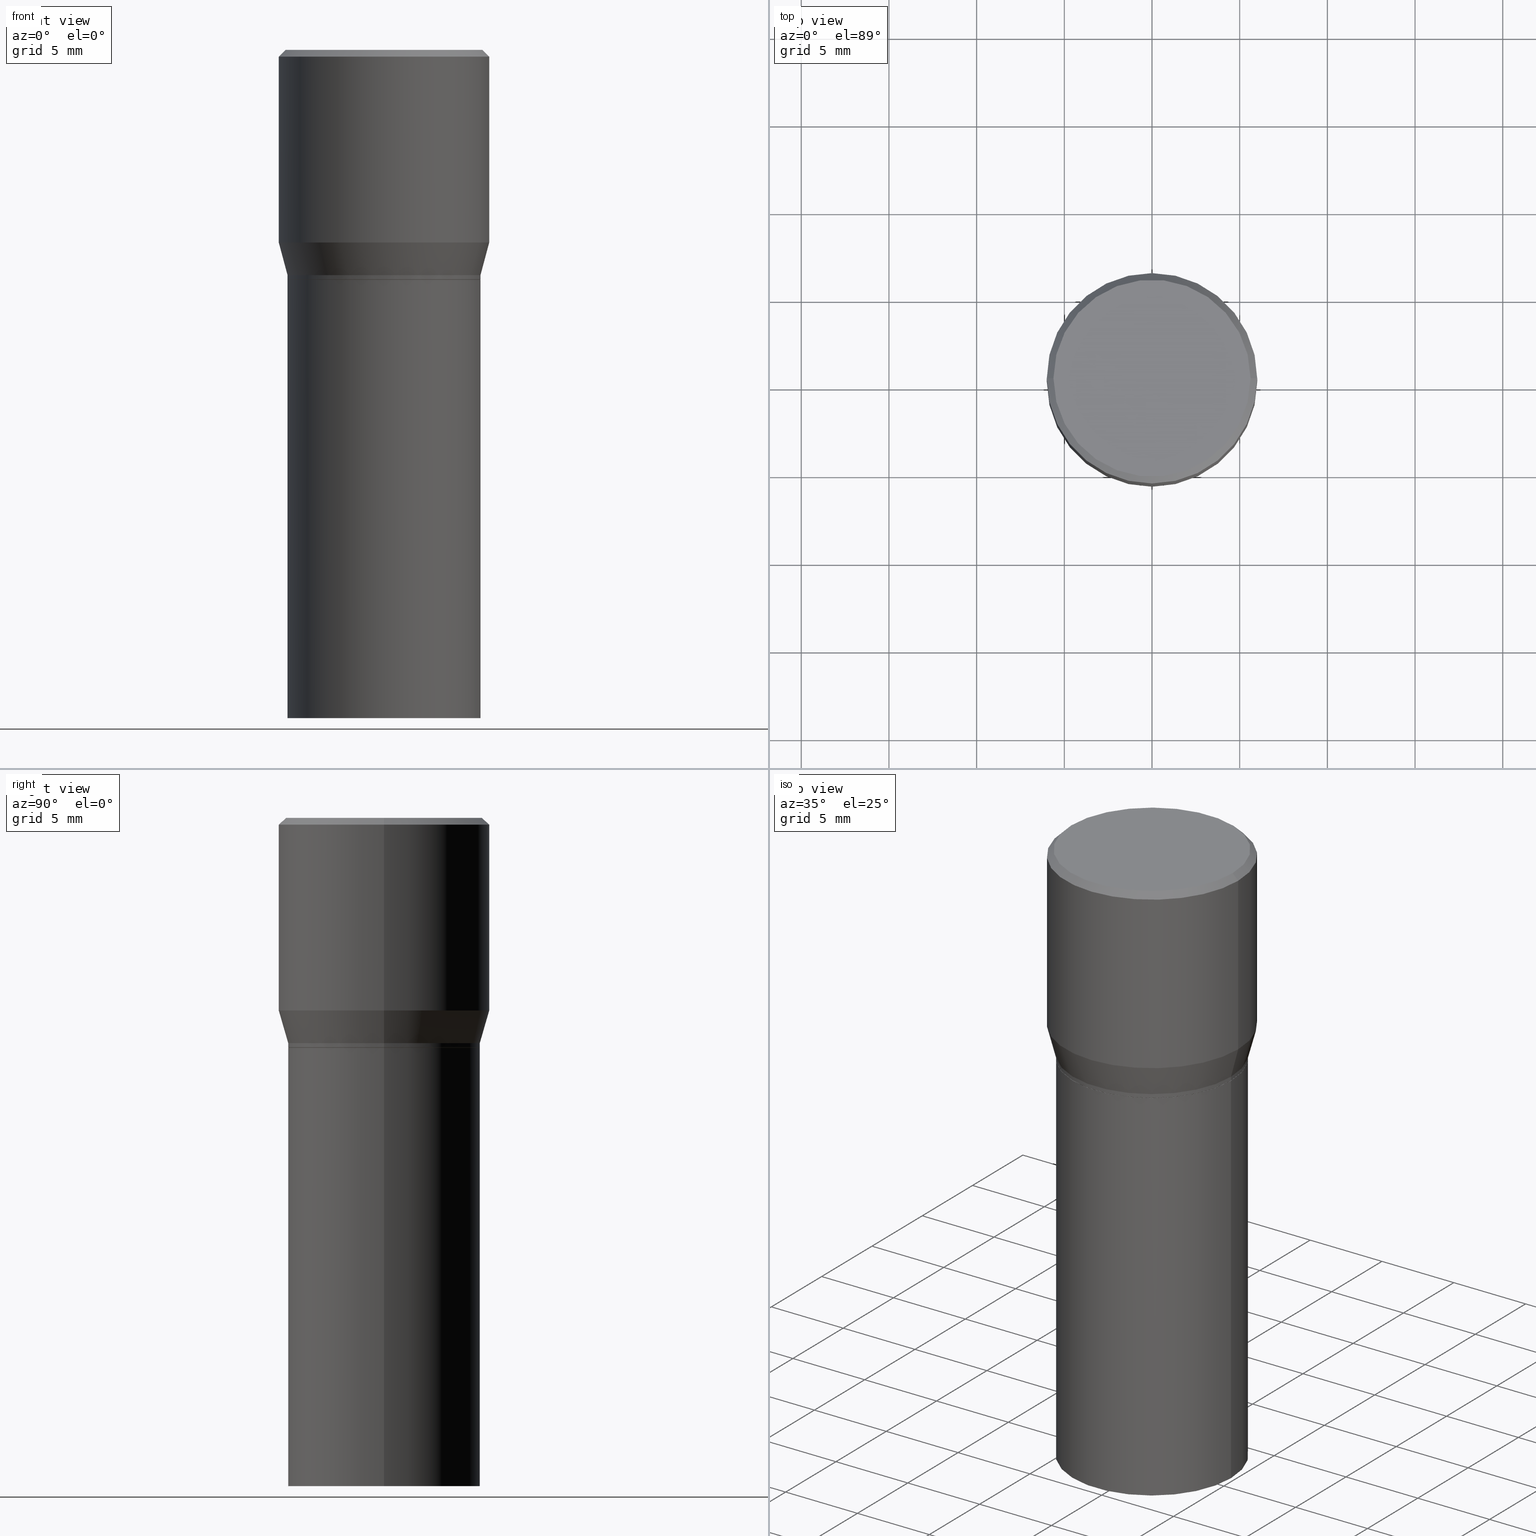
[diagram: canonical four-view strip — front | top / right | iso, engineering-drawing reading convention]
A machine part, canonical four-view strip (front | top / right | iso — engineering-drawing reading convention). The complete STEP part file that produces these views, byte-faithful:
ISO-10303-21;
HEADER;
FILE_DESCRIPTION (( 'STEP AP203' ),
    '1' );
FILE_NAME ('40161.STEP',
    '2024-03-12T19:10:19',
    ( '' ),
    ( '' ),
    'SwSTEP 2.0',
    'SolidWorks 2023',
    '' );
FILE_SCHEMA (( 'CONFIG_CONTROL_DESIGN' ));
ENDSEC;

DATA;
#1 = ORIENTED_EDGE ( 'NONE', *, *, #445, .T. ) ;
#2 = AXIS2_PLACEMENT_3D ( 'NONE', #28, #312, #174 ) ;
#3 = CONICAL_SURFACE ( 'NONE', #356, 0.2361999999999999933, 0.7853981633974459475 ) ;
#4 = CARTESIAN_POINT ( 'NONE',  ( -0.2165500000000000203, -1.980209173064567670E-15, -0.5157000000000001583 ) ) ;
#5 = ORIENTED_EDGE ( 'NONE', *, *, #286, .T. ) ;
#6 = CARTESIAN_POINT ( 'NONE',  ( 0.2165500000000000480, -3.277802680905940530E-15, -0.5057000000000001494 ) ) ;
#7 = VECTOR ( 'NONE', #257, 39.37007874015748143 ) ;
#8 = ORIENTED_EDGE ( 'NONE', *, *, #24, .F. ) ;
#9 = LINE ( 'NONE', #32, #450 ) ;
#10 = CALENDAR_DATE ( 2024, 12, 3 ) ;
#11 = DIRECTION ( 'NONE',  ( 1.000000000000000000, -6.982962677686265133E-15, 0.000000000000000000 ) ) ;
#12 = VERTEX_POINT ( 'NONE', #344 ) ;
#13 = ORIENTED_EDGE ( 'NONE', *, *, #19, .F. ) ;
#14 = DIRECTION ( 'NONE',  ( -2.445468806185136597E-29, 3.491481338843145583E-15, 1.000000000000000000 ) ) ;
#15 = CC_DESIGN_PERSON_AND_ORGANIZATION_ASSIGNMENT ( #215, #152, ( #297 ) ) ;
#16 = ORIENTED_EDGE ( 'NONE', *, *, #118, .T. ) ;
#17 = DIRECTION ( 'NONE',  ( -2.445468806185136597E-29, 3.491481338843145583E-15, 1.000000000000000000 ) ) ;
#18 = VERTEX_POINT ( 'NONE', #164 ) ;
#19 = EDGE_CURVE ( 'NONE', #221, #440, #430, .T. ) ;
#20 = DIRECTION ( 'NONE',  ( -2.445468806185136597E-29, 3.491481338843145583E-15, 1.000000000000000000 ) ) ;
#21 = CIRCLE ( 'NONE', #390, 0.2165500000000000203 ) ;
#22 = CC_DESIGN_APPROVAL ( #433, ( #297 ) ) ;
#23 = CARTESIAN_POINT ( 'NONE',  ( 3.668203209277704895E-29, -5.237222008264718177E-15, -1.500000000000000222 ) ) ;
#24 = EDGE_CURVE ( 'NONE', #188, #408, #410, .T. ) ;
#25 = DIRECTION ( 'NONE',  ( -2.445468806185136597E-29, 3.491481338843145583E-15, 1.000000000000000000 ) ) ;
#26 = EDGE_CURVE ( 'NONE', #142, #440, #242, .T. ) ;
#27 = PRODUCT_DEFINITION_SHAPE ( 'NONE', 'NONE',  #304 ) ;
#28 = CARTESIAN_POINT ( 'NONE',  ( 1.236673575287824021E-29, -1.765642113052979313E-15, -0.5057000000000001494 ) ) ;
#29 = AXIS2_PLACEMENT_3D ( 'NONE', #442, #176, #11 ) ;
#30 = DIRECTION ( 'NONE',  ( 1.000000000000000000, -6.982962677686265922E-15, 4.876176775795935793E-29 ) ) ;
#31 = EDGE_CURVE ( 'NONE', #379, #87, #171, .T. ) ;
#32 = CARTESIAN_POINT ( 'NONE',  ( 0.2160500000000000198, -3.309226012955529172E-15, -0.5157000000000001583 ) ) ;
#33 = CARTESIAN_POINT ( 'NONE',  ( 0.2165500000000000203, -6.749382576117678999E-15, -1.500000000000000222 ) ) ;
#34 = DIRECTION ( 'NONE',  ( -2.445468806185136597E-29, 3.491481338843145583E-15, 1.000000000000000000 ) ) ;
#35 = APPLICATION_PROTOCOL_DEFINITION ( 'international standard', 'config_control_design', 1994, #367 ) ;
#36 = DATE_TIME_ROLE ( 'creation_date' ) ;
#37 = ADVANCED_FACE ( 'NONE', ( #423 ), #108, .T. ) ;
#38 = AXIS2_PLACEMENT_3D ( 'NONE', #382, #14, #194 ) ;
#39 = APPROVAL_PERSON_ORGANIZATION ( #314, #99, #417 ) ;
#40 = CARTESIAN_POINT ( 'NONE',  ( 3.668203209277705088E-31, -5.237222008264718399E-17, -0.01499999999999999944 ) ) ;
#41 = ORIENTED_EDGE ( 'NONE', *, *, #310, .F. ) ;
#42 = FACE_OUTER_BOUND ( 'NONE', #92, .T. ) ;
#43 = CARTESIAN_POINT ( 'NONE',  ( 3.668203209277705088E-31, -5.237222008264718399E-17, -0.01499999999999999944 ) ) ;
#44 = EDGE_LOOP ( 'NONE', ( #318, #216, #255, #68 ) ) ;
#45 = DATE_AND_TIME ( #200, #62 ) ;
#46 = VERTEX_POINT ( 'NONE', #426 ) ;
#47 = AXIS2_PLACEMENT_3D ( 'NONE', #207, #388, #97 ) ;
#48 = DIRECTION ( 'NONE',  ( -2.445468806185136597E-29, 3.491481338843145583E-15, 1.000000000000000000 ) ) ;
#49 = ORIENTED_EDGE ( 'NONE', *, *, #380, .F. ) ;
#50 = DATE_AND_TIME ( #10, #204 ) ;
#51 = DIRECTION ( 'NONE',  ( -2.445468806185136597E-29, 3.491481338843145583E-15, 1.000000000000000000 ) ) ;
#52 = PERSON_AND_ORGANIZATION ( #66, #386 ) ;
#53 = FACE_OUTER_BOUND ( 'NONE', #125, .T. ) ;
#54 = AXIS2_PLACEMENT_3D ( 'NONE', #341, #17, #458 ) ;
#55 = LOCAL_TIME ( 15, 10, 19.00000000000000000, #427 ) ;
#56 = DIRECTION ( 'NONE',  ( -2.438088387897960049E-29, 3.491481338843145188E-15, 1.000000000000000000 ) ) ;
#57 = AXIS2_PLACEMENT_3D ( 'NONE', #43, #190, #212 ) ;
#58 = SECURITY_CLASSIFICATION ( '', '', #285 ) ;
#59 = CARTESIAN_POINT ( 'NONE',  ( 1.261128263349675426E-29, -1.800556926441410962E-15, -0.5157000000000001583 ) ) ;
#60 = COORDINATED_UNIVERSAL_TIME_OFFSET ( 5, 0, .BEHIND. ) ;
#61 = CARTESIAN_POINT ( 'NONE',  ( 3.668203209277705088E-31, -5.237222008264718399E-17, -0.01499999999999999944 ) ) ;
#62 = LOCAL_TIME ( 15, 10, 19.00000000000000000, #159 ) ;
#63 = FACE_OUTER_BOUND ( 'NONE', #298, .T. ) ;
#64 = DIRECTION ( 'NONE',  ( -2.445468806185136597E-29, 3.491481338843145583E-15, 1.000000000000000000 ) ) ;
#65 = COORDINATED_UNIVERSAL_TIME_OFFSET ( 5, 0, .BEHIND. ) ;
#66 = PERSON ( 'UNSPECIFIED', 'UNSPECIFIED', 'UNSPECIFIED', ('UNSPECIFIED'), ('UNSPECIFIED'), ('UNSPECIFIED') ) ;
#67 = CC_DESIGN_PERSON_AND_ORGANIZATION_ASSIGNMENT ( #289, #432, ( #102 ) ) ;
#68 = ORIENTED_EDGE ( 'NONE', *, *, #225, .F. ) ;
#69 = CYLINDRICAL_SURFACE ( 'NONE', #218, 0.2165500000000000480 ) ;
#70 = VERTEX_POINT ( 'NONE', #352 ) ;
#71 = FACE_OUTER_BOUND ( 'NONE', #415, .T. ) ;
#72 = DIRECTION ( 'NONE',  ( -2.445468806185136597E-29, 3.491481338843145583E-15, 1.000000000000000000 ) ) ;
#73 = PERSON_AND_ORGANIZATION ( #66, #386 ) ;
#74 = CARTESIAN_POINT ( 'NONE',  ( -0.2165500000000000480, -2.912745497993258696E-17, -0.5057000000000001494 ) ) ;
#75 = VECTOR ( 'NONE', #422, 39.37007874015748143 ) ;
#76 = ORIENTED_EDGE ( 'NONE', *, *, #155, .F. ) ;
#77 = CC_DESIGN_SECURITY_CLASSIFICATION ( #58, ( #297 ) ) ;
#78 = LINE ( 'NONE', #208, #369 ) ;
#79 = ORIENTED_EDGE ( 'NONE', *, *, #333, .T. ) ;
#80 = EDGE_LOOP ( 'NONE', ( #116, #302 ) ) ;
#81 = ORIENTED_EDGE ( 'NONE', *, *, #155, .T. ) ;
#82 = ORIENTED_EDGE ( 'NONE', *, *, #350, .T. ) ;
#83 = ADVANCED_FACE ( 'NONE', ( #206 ), #428, .F. ) ;
#84 = ADVANCED_BREP_SHAPE_REPRESENTATION ( '40161', ( #328, #320, #267 ), #146 ) ;
#85 = EDGE_CURVE ( 'NONE', #18, #340, #239, .T. ) ;
#86 = CYLINDRICAL_SURFACE ( 'NONE', #157, 0.2165500000000000203 ) ;
#87 = VERTEX_POINT ( 'NONE', #311 ) ;
#88 = VECTOR ( 'NONE', #231, 39.37007874015748143 ) ;
#89 = CARTESIAN_POINT ( 'NONE',  ( -0.2165500000000000203, 1.538680294288497096E-15, -1.065195393794699923E-29 ) ) ;
#90 = ORIENTED_EDGE ( 'NONE', *, *, #429, .F. ) ;
#91 = LINE ( 'NONE', #132, #240 ) ;
#92 = EDGE_LOOP ( 'NONE', ( #418, #451, #230, #335 ) ) ;
#93 = EDGE_LOOP ( 'NONE', ( #453, #82 ) ) ;
#94 = DIRECTION ( 'NONE',  ( 1.000000000000000000, -6.982962677686267499E-15, 0.000000000000000000 ) ) ;
#95 = CIRCLE ( 'NONE', #284, 0.2160500000000000198 ) ;
#96 = DIRECTION ( 'NONE',  ( 1.000000000000000000, -6.982962677686267499E-15, 0.000000000000000000 ) ) ;
#97 = DIRECTION ( 'NONE',  ( 1.000000000000000000, -6.982962677686266711E-15, 4.876176775795936353E-29 ) ) ;
#98 = EDGE_CURVE ( 'NONE', #347, #158, #300, .T. ) ;
#99 = APPROVAL ( #114, 'UNSPECIFIED' ) ;
#100 = DIMENSIONAL_EXPONENTS ( 1.000000000000000000, 0.000000000000000000, 0.000000000000000000, 0.000000000000000000, 0.000000000000000000, 0.000000000000000000, 0.000000000000000000 ) ;
#101 = CIRCLE ( 'NONE', #57, 0.2361999999999999933 ) ;
#102 = PRODUCT ( '40161', '40161', '', ( #181 ) ) ;
#103 = LINE ( 'NONE', #315, #454 ) ;
#104 = ADVANCED_FACE ( 'NONE', ( #391 ), #271, .T. ) ;
#105 = DIRECTION ( 'NONE',  ( -1.000000000000000000, 6.982962677686265922E-15, -4.876176775795935793E-29 ) ) ;
#106 = DIRECTION ( 'NONE',  ( -0.7071067811865715536, 7.493145998870439357E-15, 0.7071067811865232589 ) ) ;
#107 = CC_DESIGN_PERSON_AND_ORGANIZATION_ASSIGNMENT ( #290, #431, ( #58 ) ) ;
#108 = CONICAL_SURFACE ( 'NONE', #270, 0.2160500000000000198, 0.7853981633974824739 ) ;
#109 = ORIENTED_EDGE ( 'NONE', *, *, #26, .T. ) ;
#110 = DIRECTION ( 'NONE',  ( -2.445468806185136597E-29, 3.491481338843145583E-15, 1.000000000000000000 ) ) ;
#111 = CARTESIAN_POINT ( 'NONE',  ( 1.057335613469222465E-29, -1.509595033060740104E-15, -0.4323652016312719559 ) ) ;
#112 = CALENDAR_DATE ( 2024, 12, 3 ) ;
#113 = DIRECTION ( 'NONE',  ( -1.000000000000000000, 6.982962677686266711E-15, 0.000000000000000000 ) ) ;
#114 = APPROVAL_STATUS ( 'not_yet_approved' ) ;
#115 = ORIENTED_EDGE ( 'NONE', *, *, #333, .F. ) ;
#116 = ORIENTED_EDGE ( 'NONE', *, *, #378, .F. ) ;
#117 = DIRECTION ( 'NONE',  ( 1.000000000000000000, -6.982962677686266711E-15, 0.000000000000000000 ) ) ;
#118 = EDGE_CURVE ( 'NONE', #70, #452, #209, .T. ) ;
#119 = ORIENTED_EDGE ( 'NONE', *, *, #98, .F. ) ;
#120 = ORIENTED_EDGE ( 'NONE', *, *, #165, .F. ) ;
#121 = APPROVAL_DATE_TIME ( #45, #99 ) ;
#122 = DIRECTION ( 'NONE',  ( -2.445468806185136877E-29, 3.491481338843145188E-15, 1.000000000000000000 ) ) ;
#123 = CARTESIAN_POINT ( 'NONE',  ( -0.2165500000000000480, -2.269618187644819696E-16, -0.5057000000000001494 ) ) ;
#124 = FACE_OUTER_BOUND ( 'NONE', #185, .T. ) ;
#125 = EDGE_LOOP ( 'NONE', ( #115, #385, #162, #421 ) ) ;
#126 = EDGE_LOOP ( 'NONE', ( #457, #446, #109, #1 ) ) ;
#127 = ADVANCED_FACE ( 'NONE', ( #465 ), #324, .T. ) ;
#128 = ADVANCED_FACE ( 'NONE', ( #354 ), #296, .T. ) ;
#129 = DESIGN_CONTEXT ( 'detailed design', #168, 'design' ) ;
#130 = DIRECTION ( 'NONE',  ( -2.445468806185136597E-29, 3.491481338843145583E-15, 1.000000000000000000 ) ) ;
#131 = CONICAL_SURFACE ( 'NONE', #246, 0.2165500000000000480, 0.2617993877991496854 ) ;
#132 = CARTESIAN_POINT ( 'NONE',  ( 0.2165500000000000203, -1.512160567852961217E-15, 1.055936080798610036E-29 ) ) ;
#133 = CC_DESIGN_APPROVAL ( #99, ( #304 ) ) ;
#134 = EDGE_LOOP ( 'NONE', ( #175, #334, #8, #49 ) ) ;
#135 = ADVANCED_FACE ( 'NONE', ( #71 ), #184, .F. ) ;
#136 = DIRECTION ( 'NONE',  ( 0.7071067811865459074, -7.319954787623251312E-15, -0.7071067811865492381 ) ) ;
#137 = DIRECTION ( 'NONE',  ( 1.000000000000000000, -6.982962677686266711E-15, 0.000000000000000000 ) ) ;
#138 = CLOSED_SHELL ( 'NONE', ( #345, #37, #353, #104, #128, #303, #327, #161, #135, #83, #127, #299 ) ) ;
#139 = LOCAL_TIME ( 15, 10, 19.00000000000000000, #219 ) ;
#140 = ORIENTED_EDGE ( 'NONE', *, *, #378, .T. ) ;
#141 = DIRECTION ( 'NONE',  ( 1.000000000000000000, -6.982962677686265133E-15, 0.000000000000000000 ) ) ;
#142 = VERTEX_POINT ( 'NONE', #217 ) ;
#143 = CARTESIAN_POINT ( 'NONE',  ( 1.057335613469222465E-29, -1.509595033060740104E-15, -0.4323652016312719559 ) ) ;
#144 = DIRECTION ( 'NONE',  ( -2.445468806185136877E-29, 3.491481338843145188E-15, 1.000000000000000000 ) ) ;
#145 = AXIS2_PLACEMENT_3D ( 'NONE', #280, #437, #150 ) ;
#146 =( GEOMETRIC_REPRESENTATION_CONTEXT ( 3 ) GLOBAL_UNCERTAINTY_ASSIGNED_CONTEXT ( ( #362 ) ) GLOBAL_UNIT_ASSIGNED_CONTEXT ( ( #287, #366, #307 ) ) REPRESENTATION_CONTEXT ( 'NONE', 'WORKASPACE' ) );
#147 = CARTESIAN_POINT ( 'NONE',  ( 3.576687321579069994E-29, -5.368277968210015545E-15, -1.500000000000000222 ) ) ;
#148 = DIRECTION ( 'NONE',  ( 0.000000000000000000, 0.000000000000000000, 1.000000000000000000 ) ) ;
#149 = PERSON_AND_ORGANIZATION ( #66, #386 ) ;
#150 = DIRECTION ( 'NONE',  ( -1.000000000000000000, 6.982962677686265922E-15, -4.876176775795935793E-29 ) ) ;
#151 = DIRECTION ( 'NONE',  ( 0.7071067811865715536, -2.468850131082509496E-15, 0.7071067811865232589 ) ) ;
#152 = PERSON_AND_ORGANIZATION_ROLE ( 'design_supplier' ) ;
#153 = EDGE_LOOP ( 'NONE', ( #259, #381, #191, #90 ) ) ;
#154 = CARTESIAN_POINT ( 'NONE',  ( 1.261128263349675426E-29, -1.800556926441410962E-15, -0.5157000000000001583 ) ) ;
#155 = EDGE_CURVE ( 'NONE', #347, #12, #103, .T. ) ;
#156 = ORIENTED_EDGE ( 'NONE', *, *, #294, .T. ) ;
#157 = AXIS2_PLACEMENT_3D ( 'NONE', #374, #51, #419 ) ;
#158 = VERTEX_POINT ( 'NONE', #74 ) ;
#159 = COORDINATED_UNIVERSAL_TIME_OFFSET ( 5, 0, .BEHIND. ) ;
#160 = EDGE_LOOP ( 'NONE', ( #412, #16, #234, #223 ) ) ;
#161 = ADVANCED_FACE ( 'NONE', ( #210 ), #228, .T. ) ;
#162 = ORIENTED_EDGE ( 'NONE', *, *, #310, .T. ) ;
#163 = CIRCLE ( 'NONE', #343, 0.2165500000000000203 ) ;
#164 = CARTESIAN_POINT ( 'NONE',  ( 0.2212000000000000077, -1.595182002131672613E-15, 4.701447564593453826E-17 ) ) ;
#165 = EDGE_CURVE ( 'NONE', #87, #379, #95, .T. ) ;
#166 = CIRCLE ( 'NONE', #377, 0.2165500000000000203 ) ;
#167 = DIRECTION ( 'NONE',  ( -2.445468806185136597E-29, 3.491481338843145583E-15, 1.000000000000000000 ) ) ;
#168 = APPLICATION_CONTEXT ( 'configuration controlled 3d designs of mechanical parts and assemblies' ) ;
#169 = CARTESIAN_POINT ( 'NONE',  ( 0.000000000000000000, 0.000000000000000000, 0.000000000000000000 ) ) ;
#170 = DIRECTION ( 'NONE',  ( -2.445468806185136877E-29, 3.491481338843145188E-15, 1.000000000000000000 ) ) ;
#171 = CIRCLE ( 'NONE', #449, 0.2160500000000000198 ) ;
#172 = AXIS2_PLACEMENT_3D ( 'NONE', #329, #409, #245 ) ;
#173 = APPLICATION_PROTOCOL_DEFINITION ( 'international standard', 'config_control_design', 1994, #168 ) ;
#174 = DIRECTION ( 'NONE',  ( 1.000000000000000000, -6.982962677686266711E-15, 0.000000000000000000 ) ) ;
#175 = ORIENTED_EDGE ( 'NONE', *, *, #165, .T. ) ;
#176 = DIRECTION ( 'NONE',  ( -2.445468806185136597E-29, 3.491481338843145583E-15, 1.000000000000000000 ) ) ;
#177 = CARTESIAN_POINT ( 'NONE',  ( 1.544631344304202170E-15, 0.2212000000000000077, -7.488084343291421542E-16 ) ) ;
#178 = ORIENTED_EDGE ( 'NONE', *, *, #276, .F. ) ;
#179 = CARTESIAN_POINT ( 'NONE',  ( -0.2165500000000000203, -2.601308914834925589E-16, -0.5152000000000002133 ) ) ;
#180 = CYLINDRICAL_SURFACE ( 'NONE', #266, 0.2361999999999999933 ) ;
#181 = MECHANICAL_CONTEXT ( 'NONE', #367, 'mechanical' ) ;
#182 = AXIS2_PLACEMENT_3D ( 'NONE', #23, #167, #309 ) ;
#183 = APPROVAL_STATUS ( 'not_yet_approved' ) ;
#184 = PLANE ( 'NONE',  #313 ) ;
#185 = EDGE_LOOP ( 'NONE', ( #193, #227, #81, #447 ) ) ;
#186 = DIRECTION ( 'NONE',  ( 1.000000000000000000, -6.982962677686266711E-15, 4.876176775795935793E-29 ) ) ;
#187 = SHAPE_DEFINITION_REPRESENTATION ( #27, #84 ) ;
#188 = VERTEX_POINT ( 'NONE', #398 ) ;
#189 = DIRECTION ( 'NONE',  ( 1.000000000000000000, -6.982962677686266711E-15, 0.000000000000000000 ) ) ;
#190 = DIRECTION ( 'NONE',  ( -2.445468806185136597E-29, 3.491481338843145583E-15, 1.000000000000000000 ) ) ;
#191 = ORIENTED_EDGE ( 'NONE', *, *, #337, .F. ) ;
#192 = CIRCLE ( 'NONE', #38, 0.2212000000000000077 ) ;
#193 = ORIENTED_EDGE ( 'NONE', *, *, #268, .F. ) ;
#194 = DIRECTION ( 'NONE',  ( 1.000000000000000000, -6.982962677686267499E-15, 4.877828720335458505E-29 ) ) ;
#195 = ORIENTED_EDGE ( 'NONE', *, *, #268, .T. ) ;
#196 = CYLINDRICAL_SURFACE ( 'NONE', #54, 0.2165500000000000480 ) ;
#197 = AXIS2_PLACEMENT_3D ( 'NONE', #59, #25, #466 ) ;
#198 = ORIENTED_EDGE ( 'NONE', *, *, #321, .F. ) ;
#199 = AXIS2_PLACEMENT_3D ( 'NONE', #143, #214, #117 ) ;
#200 = CALENDAR_DATE ( 2024, 12, 3 ) ;
#201 = DIRECTION ( 'NONE',  ( 1.000000000000000000, -6.982962677686265922E-15, 4.876176775795935793E-29 ) ) ;
#202 = AXIS2_PLACEMENT_3D ( 'NONE', #111, #34, #332 ) ;
#203 = DIRECTION ( 'NONE',  ( -2.445468806185136597E-29, 3.491481338843145583E-15, 1.000000000000000000 ) ) ;
#204 = LOCAL_TIME ( 15, 10, 19.00000000000000000, #60 ) ;
#205 = ADVANCED_FACE ( 'NONE', ( #317 ), #243, .F. ) ;
#206 = FACE_OUTER_BOUND ( 'NONE', #264, .T. ) ;
#207 = CARTESIAN_POINT ( 'NONE',  ( 0.000000000000000000, 0.000000000000000000, 0.000000000000000000 ) ) ;
#208 = CARTESIAN_POINT ( 'NONE',  ( -0.2160500000000000198, -2.654293458317144186E-16, -0.5157000000000001583 ) ) ;
#209 = CIRCLE ( 'NONE', #182, 0.2165500000000000203 ) ;
#210 = FACE_OUTER_BOUND ( 'NONE', #126, .T. ) ;
#211 = FACE_OUTER_BOUND ( 'NONE', #414, .T. ) ;
#212 = DIRECTION ( 'NONE',  ( 1.000000000000000000, -6.982962677686266711E-15, 0.000000000000000000 ) ) ;
#213 = CC_DESIGN_PERSON_AND_ORGANIZATION_ASSIGNMENT ( #149, #330, ( #297 ) ) ;
#214 = DIRECTION ( 'NONE',  ( -2.445468806185136597E-29, 3.491481338843145583E-15, 1.000000000000000000 ) ) ;
#215 = PERSON_AND_ORGANIZATION ( #66, #386 ) ;
#216 = ORIENTED_EDGE ( 'NONE', *, *, #31, .T. ) ;
#217 = CARTESIAN_POINT ( 'NONE',  ( -0.2212000000000000077, 1.570817454345525709E-15, 4.701447564591266586E-17 ) ) ;
#218 = AXIS2_PLACEMENT_3D ( 'NONE', #331, #316, #186 ) ;
#219 = COORDINATED_UNIVERSAL_TIME_OFFSET ( 5, 0, .BEHIND. ) ;
#220 = DIRECTION ( 'NONE',  ( 2.445468806185136597E-29, -3.491481338843145583E-15, -1.000000000000000000 ) ) ;
#221 = VERTEX_POINT ( 'NONE', #247 ) ;
#222 = DIRECTION ( 'NONE',  ( 1.000000000000000000, -6.982962677686264344E-15, 0.000000000000000000 ) ) ;
#223 = ORIENTED_EDGE ( 'NONE', *, *, #350, .F. ) ;
#224 = ORIENTED_EDGE ( 'NONE', *, *, #445, .F. ) ;
#225 = EDGE_CURVE ( 'NONE', #408, #188, #21, .T. ) ;
#226 = ORIENTED_EDGE ( 'NONE', *, *, #376, .F. ) ;
#227 = ORIENTED_EDGE ( 'NONE', *, *, #263, .T. ) ;
#228 = CONICAL_SURFACE ( 'NONE', #306, 0.2361999999999999933, 0.7853981633974459475 ) ;
#229 = VECTOR ( 'NONE', #319, 39.37007874015748143 ) ;
#230 = ORIENTED_EDGE ( 'NONE', *, *, #337, .T. ) ;
#231 = DIRECTION ( 'NONE',  ( -0.2588190451025210170, 5.211531920934547886E-15, 0.9659258262890682012 ) ) ;
#232 = EDGE_LOOP ( 'NONE', ( #13, #373, #250, #224 ) ) ;
#233 = CARTESIAN_POINT ( 'NONE',  ( 1.236673575287824021E-29, -1.765642113052979313E-15, -0.5057000000000001494 ) ) ;
#234 = ORIENTED_EDGE ( 'NONE', *, *, #276, .T. ) ;
#235 = AXIS2_PLACEMENT_3D ( 'NONE', #461, #130, #236 ) ;
#236 = DIRECTION ( 'NONE',  ( 1.000000000000000000, -6.982962677686266711E-15, 0.000000000000000000 ) ) ;
#237 = CIRCLE ( 'NONE', #411, 0.2361999999999999933 ) ;
#238 = CARTESIAN_POINT ( 'NONE',  ( 1.261128263349675426E-29, -1.800556926441410962E-15, -0.5157000000000001583 ) ) ;
#239 = LINE ( 'NONE', #305, #424 ) ;
#240 = VECTOR ( 'NONE', #122, 39.37007874015748143 ) ;
#241 = AXIS2_PLACEMENT_3D ( 'NONE', #441, #110, #248 ) ;
#242 = LINE ( 'NONE', #425, #399 ) ;
#243 = PLANE ( 'NONE',  #145 ) ;
#244 = DATE_AND_TIME ( #288, #308 ) ;
#245 = DIRECTION ( 'NONE',  ( 1.000000000000000000, -6.982962677686266711E-15, 4.876176775795935793E-29 ) ) ;
#246 = AXIS2_PLACEMENT_3D ( 'NONE', #233, #203, #279 ) ;
#247 = CARTESIAN_POINT ( 'NONE',  ( -0.2361999999999999933, 1.687069088046165861E-16, -0.4323652016312719559 ) ) ;
#248 = DIRECTION ( 'NONE',  ( 1.000000000000000000, -6.982962677686267499E-15, 4.877828720335458505E-29 ) ) ;
#249 = CARTESIAN_POINT ( 'NONE',  ( 0.2165500000000000480, -1.512160567852961414E-15, 1.055936080798610176E-29 ) ) ;
#250 = ORIENTED_EDGE ( 'NONE', *, *, #429, .T. ) ;
#251 = CC_DESIGN_DATE_AND_TIME_ASSIGNMENT ( #252, #36, ( #304 ) ) ;
#252 = DATE_AND_TIME ( #342, #55 ) ;
#253 = APPROVAL_ROLE ( '' ) ;
#254 = DIRECTION ( 'NONE',  ( -2.445468806185136597E-29, 3.491481338843145583E-15, 1.000000000000000000 ) ) ;
#255 = ORIENTED_EDGE ( 'NONE', *, *, #380, .T. ) ;
#256 = PLANE ( 'NONE',  #463 ) ;
#257 = DIRECTION ( 'NONE',  ( -2.445468806185136877E-29, 3.491481338843145188E-15, 1.000000000000000000 ) ) ;
#258 = CIRCLE ( 'NONE', #355, 0.2165500000000000480 ) ;
#259 = ORIENTED_EDGE ( 'NONE', *, *, #321, .T. ) ;
#260 = CIRCLE ( 'NONE', #29, 0.2165500000000000203 ) ;
#261 = ORIENTED_EDGE ( 'NONE', *, *, #24, .T. ) ;
#262 = DIRECTION ( 'NONE',  ( -2.445468806185136597E-29, 3.491481338843145583E-15, 1.000000000000000000 ) ) ;
#263 = EDGE_CURVE ( 'NONE', #158, #347, #258, .T. ) ;
#264 = EDGE_LOOP ( 'NONE', ( #120, #372 ) ) ;
#265 = LINE ( 'NONE', #89, #75 ) ;
#266 = AXIS2_PLACEMENT_3D ( 'NONE', #402, #64, #323 ) ;
#267 = AXIS2_PLACEMENT_3D ( 'NONE', #169, #148, #358 ) ;
#268 = EDGE_CURVE ( 'NONE', #158, #221, #339, .T. ) ;
#269 = DIRECTION ( 'NONE',  ( 1.000000000000000000, -6.982962677686266711E-15, 0.000000000000000000 ) ) ;
#270 = AXIS2_PLACEMENT_3D ( 'NONE', #348, #349, #94 ) ;
#271 = CYLINDRICAL_SURFACE ( 'NONE', #47, 0.2361999999999999933 ) ;
#272 = CIRCLE ( 'NONE', #199, 0.2361999999999999933 ) ;
#273 = FACE_OUTER_BOUND ( 'NONE', #160, .T. ) ;
#274 = CARTESIAN_POINT ( 'NONE',  ( 1.261128263349675426E-29, -1.800556926441410962E-15, -0.5157000000000001583 ) ) ;
#275 = DIRECTION ( 'NONE',  ( -2.445468806185136597E-29, 3.491481338843145583E-15, 1.000000000000000000 ) ) ;
#276 = EDGE_CURVE ( 'NONE', #452, #46, #91, .T. ) ;
#277 = CARTESIAN_POINT ( 'NONE',  ( -0.2361999999999999933, 1.678301941865356591E-15, -1.161852468318208757E-29 ) ) ;
#278 = CARTESIAN_POINT ( 'NONE',  ( -0.2160500000000000198, -2.627801186576033655E-16, -0.5157000000000001583 ) ) ;
#279 = DIRECTION ( 'NONE',  ( 1.000000000000000000, -6.982962677686266711E-15, 0.000000000000000000 ) ) ;
#280 = CARTESIAN_POINT ( 'NONE',  ( 1.512160567852973444E-15, 0.2165499999999981884, -0.5157000000000009354 ) ) ;
#281 = ADVANCED_FACE ( 'NONE', ( #273 ), #86, .T. ) ;
#282 = CARTESIAN_POINT ( 'NONE',  ( -0.2361999999999999933, 8.973183152936629998E-16, -0.01499999999999999944 ) ) ;
#283 = CARTESIAN_POINT ( 'NONE',  ( 0.2361999999999999933, -1.701748004552143407E-15, -0.01499999999999999944 ) ) ;
#284 = AXIS2_PLACEMENT_3D ( 'NONE', #434, #254, #370 ) ;
#285 = SECURITY_CLASSIFICATION_LEVEL ( 'unclassified' ) ;
#286 = EDGE_CURVE ( 'NONE', #70, #413, #265, .T. ) ;
#287 =( CONVERSION_BASED_UNIT ( 'INCH', #322 ) LENGTH_UNIT ( ) NAMED_UNIT ( #100 ) );
#288 = CALENDAR_DATE ( 2024, 12, 3 ) ;
#289 = PERSON_AND_ORGANIZATION ( #66, #386 ) ;
#290 = PERSON_AND_ORGANIZATION ( #66, #386 ) ;
#291 = CARTESIAN_POINT ( 'NONE',  ( 1.259905528946582905E-29, -1.798811185771989458E-15, -0.5152000000000002133 ) ) ;
#292 = CYLINDRICAL_SURFACE ( 'NONE', #172, 0.2165500000000000203 ) ;
#293 = LINE ( 'NONE', #368, #7 ) ;
#294 = EDGE_CURVE ( 'NONE', #18, #142, #192, .T. ) ;
#295 = CARTESIAN_POINT ( 'NONE',  ( 3.668203209277704895E-29, -5.237222008264718177E-15, -1.500000000000000222 ) ) ;
#296 = CONICAL_SURFACE ( 'NONE', #2, 0.2165500000000000480, 0.2617993877991496854 ) ;
#297 = PRODUCT_DEFINITION_FORMATION_WITH_SPECIFIED_SOURCE ( 'ANY', '', #102, .NOT_KNOWN. ) ;
#298 = EDGE_LOOP ( 'NONE', ( #140, #5, #226, #178 ) ) ;
#299 = ADVANCED_FACE ( 'NONE', ( #53 ), #196, .T. ) ;
#300 = CIRCLE ( 'NONE', #235, 0.2165500000000000480 ) ;
#301 = APPROVAL_PERSON_ORGANIZATION ( #397, #456, #361 ) ;
#302 = ORIENTED_EDGE ( 'NONE', *, *, #118, .F. ) ;
#303 = ADVANCED_FACE ( 'NONE', ( #124 ), #131, .T. ) ;
#304 = PRODUCT_DEFINITION ( 'UNKNOWN', '', #297, #129 ) ;
#305 = CARTESIAN_POINT ( 'NONE',  ( 0.2361999999999999933, -1.672821847156282947E-15, -0.01499999999999999944 ) ) ;
#306 = AXIS2_PLACEMENT_3D ( 'NONE', #40, #220, #113 ) ;
#307 =( NAMED_UNIT ( * ) SI_UNIT ( $, .STERADIAN. ) SOLID_ANGLE_UNIT ( ) );
#308 = LOCAL_TIME ( 15, 10, 19.00000000000000000, #65 ) ;
#309 = DIRECTION ( 'NONE',  ( 1.000000000000000000, -6.982962677686264344E-15, 0.000000000000000000 ) ) ;
#310 = EDGE_CURVE ( 'NONE', #188, #347, #436, .T. ) ;
#311 = CARTESIAN_POINT ( 'NONE',  ( 0.2160500000000000198, -3.309226012955529172E-15, -0.5157000000000001583 ) ) ;
#312 = DIRECTION ( 'NONE',  ( -2.445468806185136597E-29, 3.491481338843145583E-15, 1.000000000000000000 ) ) ;
#313 = AXIS2_PLACEMENT_3D ( 'NONE', #177, #363, #105 ) ;
#314 = PERSON_AND_ORGANIZATION ( #66, #386 ) ;
#315 = CARTESIAN_POINT ( 'NONE',  ( 0.2165500000000000480, -3.277802680905940530E-15, -0.5057000000000001494 ) ) ;
#316 = DIRECTION ( 'NONE',  ( -2.445468806185136597E-29, 3.491481338843145583E-15, 1.000000000000000000 ) ) ;
#317 = FACE_OUTER_BOUND ( 'NONE', #93, .T. ) ;
#318 = ORIENTED_EDGE ( 'NONE', *, *, #389, .F. ) ;
#319 = DIRECTION ( 'NONE',  ( -2.445468806185136877E-29, 3.491481338843145188E-15, 1.000000000000000000 ) ) ;
#320 = MANIFOLD_SOLID_BREP ( 'Body-Move/Copy2[2]', #138 ) ;
#321 = EDGE_CURVE ( 'NONE', #12, #221, #416, .T. ) ;
#322 = LENGTH_MEASURE_WITH_UNIT ( LENGTH_MEASURE( 0.02539999999999999897 ), #444 );
#323 = DIRECTION ( 'NONE',  ( 1.000000000000000000, -6.982962677686266711E-15, 4.876176775795936353E-29 ) ) ;
#324 = CONICAL_SURFACE ( 'NONE', #197, 0.2160500000000000198, 0.7853981633974824739 ) ;
#325 = APPROVAL_DATE_TIME ( #404, #433 ) ;
#326 = DIRECTION ( 'NONE',  ( 0.2588190451025210170, 1.565188264969624531E-15, 0.9659258262890682012 ) ) ;
#327 = ADVANCED_FACE ( 'NONE', ( #360 ), #180, .T. ) ;
#328 = MANIFOLD_SOLID_BREP ( 'Body-Move/Copy2[1]', #336 ) ;
#329 = CARTESIAN_POINT ( 'NONE',  ( 0.000000000000000000, 0.000000000000000000, 0.000000000000000000 ) ) ;
#330 = PERSON_AND_ORGANIZATION_ROLE ( 'creator' ) ;
#331 = CARTESIAN_POINT ( 'NONE',  ( 0.000000000000000000, 0.000000000000000000, 0.000000000000000000 ) ) ;
#332 = DIRECTION ( 'NONE',  ( 1.000000000000000000, -6.982962677686266711E-15, 0.000000000000000000 ) ) ;
#333 = EDGE_CURVE ( 'NONE', #408, #158, #293, .T. ) ;
#334 = ORIENTED_EDGE ( 'NONE', *, *, #389, .T. ) ;
#335 = ORIENTED_EDGE ( 'NONE', *, *, #26, .F. ) ;
#336 = CLOSED_SHELL ( 'NONE', ( #438, #396, #281, #205 ) ) ;
#337 = EDGE_CURVE ( 'NONE', #340, #440, #101, .T. ) ;
#338 = CC_DESIGN_APPROVAL ( #456, ( #58 ) ) ;
#339 = LINE ( 'NONE', #123, #88 ) ;
#340 = VERTEX_POINT ( 'NONE', #283 ) ;
#341 = CARTESIAN_POINT ( 'NONE',  ( 0.000000000000000000, 0.000000000000000000, 0.000000000000000000 ) ) ;
#342 = CALENDAR_DATE ( 2024, 12, 3 ) ;
#343 = AXIS2_PLACEMENT_3D ( 'NONE', #154, #72, #141 ) ;
#344 = CARTESIAN_POINT ( 'NONE',  ( 0.2361999999999999933, -3.158970817530236235E-15, -0.4323652016312719559 ) ) ;
#345 = ADVANCED_FACE ( 'NONE', ( #211 ), #69, .T. ) ;
#346 = PRODUCT_RELATED_PRODUCT_CATEGORY ( 'detail', '', ( #102 ) ) ;
#347 = VERTEX_POINT ( 'NONE', #6 ) ;
#348 = CARTESIAN_POINT ( 'NONE',  ( 1.261128263349675426E-29, -1.800556926441410962E-15, -0.5157000000000001583 ) ) ;
#349 = DIRECTION ( 'NONE',  ( -2.445468806185136597E-29, 3.491481338843145583E-15, 1.000000000000000000 ) ) ;
#350 = EDGE_CURVE ( 'NONE', #413, #46, #163, .T. ) ;
#351 = VECTOR ( 'NONE', #144, 39.37007874015748143 ) ;
#352 = CARTESIAN_POINT ( 'NONE',  ( -0.2165500000000000203, -1.980209173064567670E-15, -1.500000000000000222 ) ) ;
#353 = ADVANCED_FACE ( 'NONE', ( #42 ), #3, .T. ) ;
#354 = FACE_OUTER_BOUND ( 'NONE', #459, .T. ) ;
#355 = AXIS2_PLACEMENT_3D ( 'NONE', #460, #48, #269 ) ;
#356 = AXIS2_PLACEMENT_3D ( 'NONE', #61, #359, #403 ) ;
#357 = FACE_OUTER_BOUND ( 'NONE', #80, .T. ) ;
#358 = DIRECTION ( 'NONE',  ( 1.000000000000000000, 0.000000000000000000, 0.000000000000000000 ) ) ;
#359 = DIRECTION ( 'NONE',  ( 2.445468806185136597E-29, -3.491481338843145583E-15, -1.000000000000000000 ) ) ;
#360 = FACE_OUTER_BOUND ( 'NONE', #232, .T. ) ;
#361 = APPROVAL_ROLE ( '' ) ;
#362 = UNCERTAINTY_MEASURE_WITH_UNIT (LENGTH_MEASURE( 1.000000000000000082E-05 ), #287, 'distance_accuracy_value', 'NONE');
#363 = DIRECTION ( 'NONE',  ( 2.438088387897960049E-29, -3.491481338843145188E-15, -1.000000000000000000 ) ) ;
#364 = ORIENTED_EDGE ( 'NONE', *, *, #443, .T. ) ;
#365 = CARTESIAN_POINT ( 'NONE',  ( 3.668203209277705088E-31, -5.237222008264718399E-17, -0.01499999999999999944 ) ) ;
#366 =( NAMED_UNIT ( * ) PLANE_ANGLE_UNIT ( ) SI_UNIT ( $, .RADIAN. ) );
#367 = APPLICATION_CONTEXT ( 'configuration controlled 3d designs of mechanical parts and assemblies' ) ;
#368 = CARTESIAN_POINT ( 'NONE',  ( -0.2165500000000000480, 1.538680294288497294E-15, -1.065195393794700063E-29 ) ) ;
#369 = VECTOR ( 'NONE', #106, 39.37007874015748854 ) ;
#370 = DIRECTION ( 'NONE',  ( 1.000000000000000000, -6.982962677686267499E-15, 0.000000000000000000 ) ) ;
#371 = DIRECTION ( 'NONE',  ( -2.438088387897960049E-29, 3.491481338843145188E-15, 1.000000000000000000 ) ) ;
#372 = ORIENTED_EDGE ( 'NONE', *, *, #31, .F. ) ;
#373 = ORIENTED_EDGE ( 'NONE', *, *, #420, .T. ) ;
#374 = CARTESIAN_POINT ( 'NONE',  ( 0.000000000000000000, 0.000000000000000000, 0.000000000000000000 ) ) ;
#375 = AXIS2_PLACEMENT_3D ( 'NONE', #274, #56, #201 ) ;
#376 = EDGE_CURVE ( 'NONE', #46, #413, #260, .T. ) ;
#377 = AXIS2_PLACEMENT_3D ( 'NONE', #295, #448, #222 ) ;
#378 = EDGE_CURVE ( 'NONE', #452, #70, #166, .T. ) ;
#379 = VERTEX_POINT ( 'NONE', #278 ) ;
#380 = EDGE_CURVE ( 'NONE', #87, #188, #9, .T. ) ;
#381 = ORIENTED_EDGE ( 'NONE', *, *, #19, .T. ) ;
#382 = CARTESIAN_POINT ( 'NONE',  ( -1.149724336312568861E-45, 1.641501643732376549E-31, 4.701447564592356200E-17 ) ) ;
#383 = CC_DESIGN_PERSON_AND_ORGANIZATION_ASSIGNMENT ( #52, #464, ( #304 ) ) ;
#384 = VECTOR ( 'NONE', #170, 39.37007874015748143 ) ;
#385 = ORIENTED_EDGE ( 'NONE', *, *, #225, .T. ) ;
#386 = ORGANIZATION ( 'UNSPECIFIED', 'UNSPECIFIED', '' ) ;
#387 = CARTESIAN_POINT ( 'NONE',  ( 1.259905528946582905E-29, -1.798811185771989458E-15, -0.5152000000000002133 ) ) ;
#388 = DIRECTION ( 'NONE',  ( -2.445468806185136597E-29, 3.491481338843145583E-15, 1.000000000000000000 ) ) ;
#389 = EDGE_CURVE ( 'NONE', #379, #408, #78, .T. ) ;
#390 = AXIS2_PLACEMENT_3D ( 'NONE', #291, #407, #189 ) ;
#391 = FACE_OUTER_BOUND ( 'NONE', #153, .T. ) ;
#392 = APPROVAL_PERSON_ORGANIZATION ( #73, #433, #253 ) ;
#393 = DATE_TIME_ROLE ( 'classification_date' ) ;
#394 = DIRECTION ( 'NONE',  ( -0.7071067811865459074, 2.468850131082239706E-15, -0.7071067811865492381 ) ) ;
#395 = APPROVAL_STATUS ( 'not_yet_approved' ) ;
#396 = ADVANCED_FACE ( 'NONE', ( #357 ), #256, .F. ) ;
#397 = PERSON_AND_ORGANIZATION ( #66, #386 ) ;
#398 = CARTESIAN_POINT ( 'NONE',  ( 0.2165500000000000203, -3.310971753624950675E-15, -0.5152000000000002133 ) ) ;
#399 = VECTOR ( 'NONE', #394, 39.37007874015748143 ) ;
#400 = ORIENTED_EDGE ( 'NONE', *, *, #98, .T. ) ;
#401 = CARTESIAN_POINT ( 'NONE',  ( 0.2361999999999999933, -1.649375784469496131E-15, 1.151752954443000088E-29 ) ) ;
#402 = CARTESIAN_POINT ( 'NONE',  ( 0.000000000000000000, 0.000000000000000000, 0.000000000000000000 ) ) ;
#403 = DIRECTION ( 'NONE',  ( -1.000000000000000000, 6.982962677686266711E-15, 0.000000000000000000 ) ) ;
#404 = DATE_AND_TIME ( #112, #139 ) ;
#405 = CC_DESIGN_DATE_AND_TIME_ASSIGNMENT ( #244, #393, ( #58 ) ) ;
#406 = DIRECTION ( 'NONE',  ( 1.000000000000000000, -6.982962677686266711E-15, 0.000000000000000000 ) ) ;
#407 = DIRECTION ( 'NONE',  ( -2.445468806185136597E-29, 3.491481338843145583E-15, 1.000000000000000000 ) ) ;
#408 = VERTEX_POINT ( 'NONE', #179 ) ;
#409 = DIRECTION ( 'NONE',  ( -2.445468806185136597E-29, 3.491481338843145583E-15, 1.000000000000000000 ) ) ;
#410 = CIRCLE ( 'NONE', #439, 0.2165500000000000203 ) ;
#411 = AXIS2_PLACEMENT_3D ( 'NONE', #365, #262, #406 ) ;
#412 = ORIENTED_EDGE ( 'NONE', *, *, #286, .F. ) ;
#413 = VERTEX_POINT ( 'NONE', #4 ) ;
#414 = EDGE_LOOP ( 'NONE', ( #261, #79, #119, #41 ) ) ;
#415 = EDGE_LOOP ( 'NONE', ( #364, #156 ) ) ;
#416 = CIRCLE ( 'NONE', #202, 0.2361999999999999933 ) ;
#417 = APPROVAL_ROLE ( '' ) ;
#418 = ORIENTED_EDGE ( 'NONE', *, *, #294, .F. ) ;
#419 = DIRECTION ( 'NONE',  ( 1.000000000000000000, -6.982962677686266711E-15, 4.876176775795935793E-29 ) ) ;
#420 = EDGE_CURVE ( 'NONE', #221, #12, #272, .T. ) ;
#421 = ORIENTED_EDGE ( 'NONE', *, *, #263, .F. ) ;
#422 = DIRECTION ( 'NONE',  ( -2.445468806185136877E-29, 3.491481338843145188E-15, 1.000000000000000000 ) ) ;
#423 = FACE_OUTER_BOUND ( 'NONE', #134, .T. ) ;
#424 = VECTOR ( 'NONE', #136, 39.37007874015748143 ) ;
#425 = CARTESIAN_POINT ( 'NONE',  ( -0.2361999999999999933, 1.597003564386848854E-15, -0.01499999999999999944 ) ) ;
#426 = CARTESIAN_POINT ( 'NONE',  ( 0.2165500000000000203, -3.312717494294371784E-15, -0.5157000000000001583 ) ) ;
#427 = COORDINATED_UNIVERSAL_TIME_OFFSET ( 5, 0, .BEHIND. ) ;
#428 = PLANE ( 'NONE',  #375 ) ;
#429 = EDGE_CURVE ( 'NONE', #12, #340, #435, .T. ) ;
#430 = LINE ( 'NONE', #277, #384 ) ;
#431 = PERSON_AND_ORGANIZATION_ROLE ( 'classification_officer' ) ;
#432 = PERSON_AND_ORGANIZATION_ROLE ( 'design_owner' ) ;
#433 = APPROVAL ( #183, 'UNSPECIFIED' ) ;
#434 = CARTESIAN_POINT ( 'NONE',  ( 1.261128263349675426E-29, -1.800556926441410962E-15, -0.5157000000000001583 ) ) ;
#435 = LINE ( 'NONE', #401, #229 ) ;
#436 = LINE ( 'NONE', #249, #351 ) ;
#437 = DIRECTION ( 'NONE',  ( 2.438088387897960049E-29, -3.491481338843145188E-15, -1.000000000000000000 ) ) ;
#438 = ADVANCED_FACE ( 'NONE', ( #63 ), #292, .T. ) ;
#439 = AXIS2_PLACEMENT_3D ( 'NONE', #387, #275, #137 ) ;
#440 = VERTEX_POINT ( 'NONE', #282 ) ;
#441 = CARTESIAN_POINT ( 'NONE',  ( -1.149724336312568861E-45, 1.641501643732376549E-31, 4.701447564592356200E-17 ) ) ;
#442 = CARTESIAN_POINT ( 'NONE',  ( 1.261128263349675426E-29, -1.800556926441410962E-15, -0.5157000000000001583 ) ) ;
#443 = EDGE_CURVE ( 'NONE', #142, #18, #455, .T. ) ;
#444 =( LENGTH_UNIT ( ) NAMED_UNIT ( * ) SI_UNIT ( $, .METRE. ) );
#445 = EDGE_CURVE ( 'NONE', #440, #340, #237, .T. ) ;
#446 = ORIENTED_EDGE ( 'NONE', *, *, #443, .F. ) ;
#447 = ORIENTED_EDGE ( 'NONE', *, *, #420, .F. ) ;
#448 = DIRECTION ( 'NONE',  ( -2.445468806185136597E-29, 3.491481338843145583E-15, 1.000000000000000000 ) ) ;
#449 = AXIS2_PLACEMENT_3D ( 'NONE', #238, #20, #96 ) ;
#450 = VECTOR ( 'NONE', #151, 39.37007874015748854 ) ;
#451 = ORIENTED_EDGE ( 'NONE', *, *, #85, .T. ) ;
#452 = VERTEX_POINT ( 'NONE', #33 ) ;
#453 = ORIENTED_EDGE ( 'NONE', *, *, #376, .T. ) ;
#454 = VECTOR ( 'NONE', #326, 39.37007874015748143 ) ;
#455 = CIRCLE ( 'NONE', #241, 0.2212000000000000077 ) ;
#456 = APPROVAL ( #395, 'UNSPECIFIED' ) ;
#457 = ORIENTED_EDGE ( 'NONE', *, *, #85, .F. ) ;
#458 = DIRECTION ( 'NONE',  ( 1.000000000000000000, -6.982962677686266711E-15, 4.876176775795935793E-29 ) ) ;
#459 = EDGE_LOOP ( 'NONE', ( #400, #195, #198, #76 ) ) ;
#460 = CARTESIAN_POINT ( 'NONE',  ( 1.236673575287824021E-29, -1.765642113052979313E-15, -0.5057000000000001494 ) ) ;
#461 = CARTESIAN_POINT ( 'NONE',  ( 1.236673575287824021E-29, -1.765642113052979313E-15, -0.5057000000000001494 ) ) ;
#462 = APPROVAL_DATE_TIME ( #50, #456 ) ;
#463 = AXIS2_PLACEMENT_3D ( 'NONE', #147, #371, #30 ) ;
#464 = PERSON_AND_ORGANIZATION_ROLE ( 'creator' ) ;
#465 = FACE_OUTER_BOUND ( 'NONE', #44, .T. ) ;
#466 = DIRECTION ( 'NONE',  ( 1.000000000000000000, -6.982962677686267499E-15, 0.000000000000000000 ) ) ;
ENDSEC;
END-ISO-10303-21;
